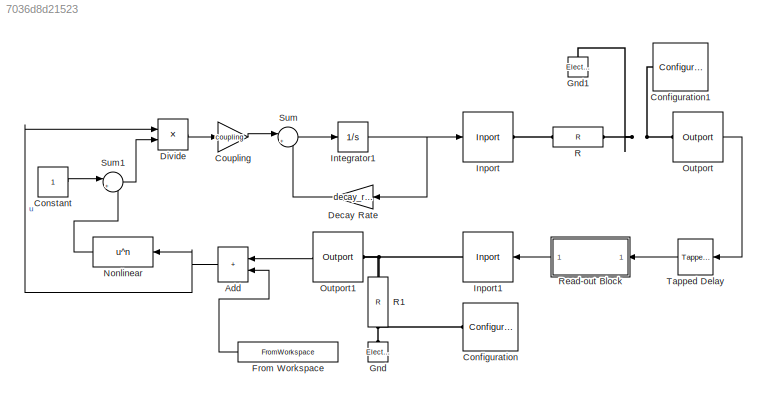
MODEL slx_7036d8d21523
KIND model
CONFIG AbsTol = auto
CONFIG EnableMultiTasking = off
CONFIG FixedStep = auto
CONFIG MaxStep = auto
CONFIG MinStep = auto
CONFIG RelTol = 1e-3
CONFIG SampleTimeConstraint = Unconstrained
CONFIG SolverName = FixedStepAuto
CONFIG StartTime = 0.0
CONFIG StopTime = TFinal
BLOCK [Sum] Add
  IconShape = rectangular
  NameLocation = top
  Ports = [2, 1]
BLOCK [Reference] Configuration  REF=simrfV2util1/Configuration
  Ports = [0, 0, 0, 0, 0, 1]
  SourceBlock = simrfV2util1/Configuration
  SourceProductBaseCode = RB
  SourceType = Configuration
BLOCK [Reference] Configuration1  REF=simrfV2util1/Configuration
  Ports = [0, 0, 0, 0, 0, 1]
  SourceBlock = simrfV2util1/Configuration
  SourceProductBaseCode = RB
  SourceType = Configuration
BLOCK [Constant] Constant
BLOCK [Gain] Coupling
  Gain = coupling
BLOCK [Gain] Decay Rate 
  Gain = decay_rate
  NameLocation = top
BLOCK [Product] Divide
  Inputs = */
  Ports = [2, 1]
BLOCK [FromWorkspace] From Workspace
  NameLocation = top
  VariableName = system_inputSequence
BLOCK [Reference] Gnd  REF=simrfV2_lib/Elements/Electrical Reference
  NameLocation = right
  Ports = [0, 0, 0, 0, 0, 1]
  SourceBlock = simrfV2_lib/Elements/Electrical Reference
  SourceProductBaseCode = RB
  SourceType = Electrical Reference
BLOCK [Reference] Gnd1  REF=simrfV2_lib/Elements/Electrical Reference
  NameLocation = right
  Ports = [0, 0, 0, 0, 0, 1]
  SourceBlock = simrfV2_lib/Elements/Electrical Reference
  SourceProductBaseCode = RB
  SourceType = Electrical Reference
BLOCK [Reference] Inport  REF=simrfV2util1/Inport
  Ports = [1, 0, 0, 0, 0, 0, 1]
  SourceBlock = simrfV2util1/Inport
  SourceProductBaseCode = RB
  SourceType = Inport
BLOCK [Reference] Inport1  REF=simrfV2util1/Inport
  NameLocation = top
  Ports = [1, 0, 0, 0, 0, 0, 1]
  SourceBlock = simrfV2util1/Inport
  SourceProductBaseCode = RB
  SourceType = Inport
BLOCK [Integrator] Integrator1
  IgnoreLimit = on
  Ports = [1, 1]
BLOCK [Fcn] Nonlinear
  Expr = u^n
BLOCK [Reference] Outport  REF=simrfV2util1/Outport
  Ports = [0, 1, 0, 0, 0, 1]
  SourceBlock = simrfV2util1/Outport
  SourceProductBaseCode = RB
  SourceType = Outport
BLOCK [Reference] Outport1  REF=simrfV2util1/Outport
  NameLocation = top
  Ports = [0, 1, 0, 0, 0, 1]
  SourceBlock = simrfV2util1/Outport
  SourceProductBaseCode = RB
  SourceType = Outport
BLOCK [Reference] R  REF=simrfV2elements/R
  Ports = [0, 0, 0, 0, 0, 1, 1]
  SourceBlock = simrfV2elements/R
  SourceProductBaseCode = RB
  SourceType = Resistor
BLOCK [Reference] R1  REF=simrfV2elements/R
  NameLocation = right
  Ports = [0, 0, 0, 0, 0, 1, 1]
  SourceBlock = simrfV2elements/R
  SourceProductBaseCode = RB
  SourceType = Resistor
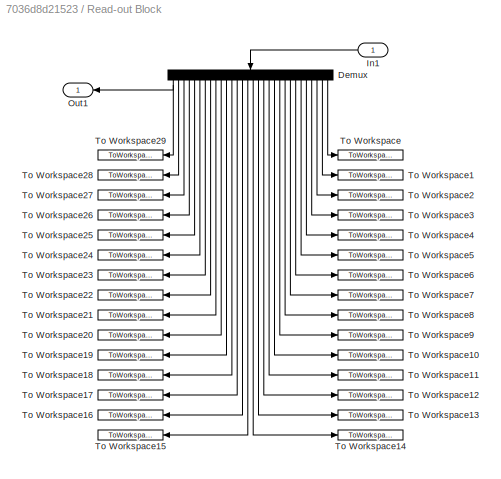
BLOCK [SubSystem] Read-out Block
  NameLocation = top
  Ports = [1, 1]
  RequestExecContextInheritance = off
BLOCK [Demux] Read-out Block/Demux
  DisplayOption = none
  NameLocation = left
  Outputs = 30
  Ports = [1, 30]
BLOCK [Inport] Read-out Block/In1
BLOCK [Outport] Read-out Block/Out1
BLOCK [ToWorkspace] Read-out Block/To Workspace
  FixptAsFi = on
  MaxDataPoints = inf
  Ports = [1]
  SampleTime = sample_time
  VariableName = simout
BLOCK [ToWorkspace] Read-out Block/To Workspace1
  FixptAsFi = on
  MaxDataPoints = inf
  Ports = [1]
  SampleTime = sample_time
  VariableName = simout1
BLOCK [ToWorkspace] Read-out Block/To Workspace10
  FixptAsFi = on
  MaxDataPoints = inf
  Ports = [1]
  SampleTime = sample_time
  VariableName = simout10
BLOCK [ToWorkspace] Read-out Block/To Workspace11
  FixptAsFi = on
  MaxDataPoints = inf
  Ports = [1]
  SampleTime = sample_time
  VariableName = simout11
BLOCK [ToWorkspace] Read-out Block/To Workspace12
  FixptAsFi = on
  MaxDataPoints = inf
  Ports = [1]
  SampleTime = sample_time
  VariableName = simout12
BLOCK [ToWorkspace] Read-out Block/To Workspace13
  FixptAsFi = on
  MaxDataPoints = inf
  Ports = [1]
  SampleTime = sample_time
  VariableName = simout13
BLOCK [ToWorkspace] Read-out Block/To Workspace14
  FixptAsFi = on
  MaxDataPoints = inf
  Ports = [1]
  SampleTime = sample_time
  VariableName = simout14
BLOCK [ToWorkspace] Read-out Block/To Workspace15
  FixptAsFi = on
  MaxDataPoints = inf
  NameLocation = top
  Ports = [1]
  SampleTime = sample_time
  VariableName = simout15
BLOCK [ToWorkspace] Read-out Block/To Workspace16
  FixptAsFi = on
  MaxDataPoints = inf
  NameLocation = top
  Ports = [1]
  SampleTime = sample_time
  VariableName = simout16
BLOCK [ToWorkspace] Read-out Block/To Workspace17
  FixptAsFi = on
  MaxDataPoints = inf
  NameLocation = top
  Ports = [1]
  SampleTime = sample_time
  VariableName = simout17
BLOCK [ToWorkspace] Read-out Block/To Workspace18
  FixptAsFi = on
  MaxDataPoints = inf
  NameLocation = top
  Ports = [1]
  SampleTime = sample_time
  VariableName = simout18
BLOCK [ToWorkspace] Read-out Block/To Workspace19
  FixptAsFi = on
  MaxDataPoints = inf
  NameLocation = top
  Ports = [1]
  SampleTime = sample_time
  VariableName = simout19
BLOCK [ToWorkspace] Read-out Block/To Workspace2
  FixptAsFi = on
  MaxDataPoints = inf
  Ports = [1]
  SampleTime = sample_time
  VariableName = simout2
BLOCK [ToWorkspace] Read-out Block/To Workspace20
  FixptAsFi = on
  MaxDataPoints = inf
  NameLocation = top
  Ports = [1]
  SampleTime = sample_time
  VariableName = simout20
BLOCK [ToWorkspace] Read-out Block/To Workspace21
  FixptAsFi = on
  MaxDataPoints = inf
  NameLocation = top
  Ports = [1]
  SampleTime = sample_time
  VariableName = simout21
BLOCK [ToWorkspace] Read-out Block/To Workspace22
  FixptAsFi = on
  MaxDataPoints = inf
  NameLocation = top
  Ports = [1]
  SampleTime = sample_time
  VariableName = simout22
BLOCK [ToWorkspace] Read-out Block/To Workspace23
  FixptAsFi = on
  MaxDataPoints = inf
  NameLocation = top
  Ports = [1]
  SampleTime = sample_time
  VariableName = simout23
BLOCK [ToWorkspace] Read-out Block/To Workspace24
  FixptAsFi = on
  MaxDataPoints = inf
  NameLocation = top
  Ports = [1]
  SampleTime = sample_time
  VariableName = simout24
BLOCK [ToWorkspace] Read-out Block/To Workspace25
  FixptAsFi = on
  MaxDataPoints = inf
  NameLocation = top
  Ports = [1]
  SampleTime = sample_time
  VariableName = simout25
BLOCK [ToWorkspace] Read-out Block/To Workspace26
  FixptAsFi = on
  MaxDataPoints = inf
  NameLocation = top
  Ports = [1]
  SampleTime = sample_time
  VariableName = simout26
BLOCK [ToWorkspace] Read-out Block/To Workspace27
  FixptAsFi = on
  MaxDataPoints = inf
  NameLocation = top
  Ports = [1]
  SampleTime = sample_time
  VariableName = simout27
BLOCK [ToWorkspace] Read-out Block/To Workspace28
  FixptAsFi = on
  MaxDataPoints = inf
  NameLocation = top
  Ports = [1]
  SampleTime = sample_time
  VariableName = simout28
BLOCK [ToWorkspace] Read-out Block/To Workspace29
  FixptAsFi = on
  MaxDataPoints = inf
  NameLocation = top
  Ports = [1]
  SampleTime = sample_time
  VariableName = simout29
BLOCK [ToWorkspace] Read-out Block/To Workspace3
  FixptAsFi = on
  MaxDataPoints = inf
  Ports = [1]
  SampleTime = sample_time
  VariableName = simout3
BLOCK [ToWorkspace] Read-out Block/To Workspace4
  FixptAsFi = on
  MaxDataPoints = inf
  Ports = [1]
  SampleTime = sample_time
  VariableName = simout4
BLOCK [ToWorkspace] Read-out Block/To Workspace5
  FixptAsFi = on
  MaxDataPoints = inf
  Ports = [1]
  SampleTime = sample_time
  VariableName = simout5
BLOCK [ToWorkspace] Read-out Block/To Workspace6
  FixptAsFi = on
  MaxDataPoints = inf
  Ports = [1]
  SampleTime = sample_time
  VariableName = simout6
BLOCK [ToWorkspace] Read-out Block/To Workspace7
  FixptAsFi = on
  MaxDataPoints = inf
  Ports = [1]
  SampleTime = sample_time
  VariableName = simout7
BLOCK [ToWorkspace] Read-out Block/To Workspace8
  FixptAsFi = on
  MaxDataPoints = inf
  Ports = [1]
  SampleTime = sample_time
  VariableName = simout8
BLOCK [ToWorkspace] Read-out Block/To Workspace9
  FixptAsFi = on
  MaxDataPoints = inf
  Ports = [1]
  SampleTime = sample_time
  VariableName = simout9
BLOCK [Sum] Sum
  Inputs = |+-
  Ports = [2, 1]
BLOCK [Sum] Sum1
  Inputs = |++
  Ports = [2, 1]
BLOCK [Reference] Tapped Delay  REF=simulink/Discrete/Tapped Delay
  NameLocation = top
  Ports = [1, 1]
  SourceBlock = simulink/Discrete/Tapped Delay
  SourceProductBaseCode = SL
  SourceType = Tapped Delay Line
NET Add:1 -> Divide:1, Nonlinear:1
LINE Constant:1 -> Sum1:1
LINE Coupling:1 -> Sum:1
LINE Decay Rate :1 -> Sum:2
LINE Divide:1 -> Coupling:1
LINE From Workspace:1 -> Add:2
NET Integrator1:1 -> Decay Rate :1, Inport:1
LINE Nonlinear:1 -> Sum1:2
LINE Outport1:1 -> Add:1
LINE Outport:1 -> Tapped Delay:1
NET Read-out Block/Demux:1 -> Read-out Block/Out1:1, Read-out Block/To Workspace29:1
LINE Read-out Block/Demux:10 -> Read-out Block/To Workspace20:1
LINE Read-out Block/Demux:11 -> Read-out Block/To Workspace19:1
LINE Read-out Block/Demux:12 -> Read-out Block/To Workspace18:1
LINE Read-out Block/Demux:13 -> Read-out Block/To Workspace17:1
LINE Read-out Block/Demux:14 -> Read-out Block/To Workspace16:1
LINE Read-out Block/Demux:15 -> Read-out Block/To Workspace15:1
LINE Read-out Block/Demux:16 -> Read-out Block/To Workspace14:1
LINE Read-out Block/Demux:17 -> Read-out Block/To Workspace13:1
LINE Read-out Block/Demux:18 -> Read-out Block/To Workspace12:1
LINE Read-out Block/Demux:19 -> Read-out Block/To Workspace11:1
LINE Read-out Block/Demux:2 -> Read-out Block/To Workspace28:1
LINE Read-out Block/Demux:20 -> Read-out Block/To Workspace10:1
LINE Read-out Block/Demux:21 -> Read-out Block/To Workspace9:1
LINE Read-out Block/Demux:22 -> Read-out Block/To Workspace8:1
LINE Read-out Block/Demux:23 -> Read-out Block/To Workspace7:1
LINE Read-out Block/Demux:24 -> Read-out Block/To Workspace6:1
LINE Read-out Block/Demux:25 -> Read-out Block/To Workspace5:1
LINE Read-out Block/Demux:26 -> Read-out Block/To Workspace4:1
LINE Read-out Block/Demux:27 -> Read-out Block/To Workspace3:1
LINE Read-out Block/Demux:28 -> Read-out Block/To Workspace2:1
LINE Read-out Block/Demux:29 -> Read-out Block/To Workspace1:1
LINE Read-out Block/Demux:3 -> Read-out Block/To Workspace27:1
LINE Read-out Block/Demux:30 -> Read-out Block/To Workspace:1
LINE Read-out Block/Demux:4 -> Read-out Block/To Workspace26:1
LINE Read-out Block/Demux:5 -> Read-out Block/To Workspace25:1
LINE Read-out Block/Demux:6 -> Read-out Block/To Workspace24:1
LINE Read-out Block/Demux:7 -> Read-out Block/To Workspace23:1
LINE Read-out Block/Demux:8 -> Read-out Block/To Workspace22:1
LINE Read-out Block/Demux:9 -> Read-out Block/To Workspace21:1
LINE Read-out Block/In1:1 -> Read-out Block/Demux:1
LINE Read-out Block:1 -> Inport1:1
LINE Sum1:1 -> Divide:2
LINE Sum:1 -> Integrator1:1
LINE Tapped Delay:1 -> Read-out Block:1
PNET net1: Configuration1:LConn1 -- Gnd1:LConn1 -- Outport:LConn1 -- R:RConn1
PNET net2: Configuration:LConn1 -- Inport1:RConn1 -- Outport1:LConn1 -- R1:RConn1
PLINE Gnd:LConn1 -- R1:LConn1
PLINE Inport:RConn1 -- R:LConn1
note: NET lines group one-source signal fan-out (src -> all destinations, sorted); 1:1 wires keep LINE; PNET lines group multi-terminal physical nets as a canonical sorted terminal list (undirected conserving connections); 2-terminal nets keep the pairwise PLINE form
